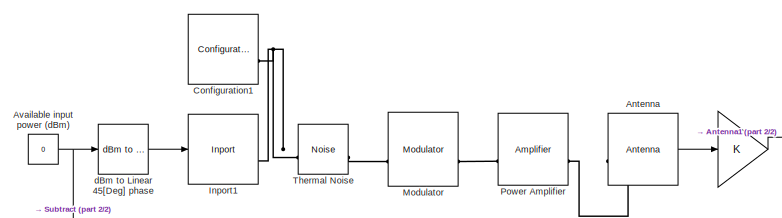
[diagram: root canvas - part 1/2, middle left region]
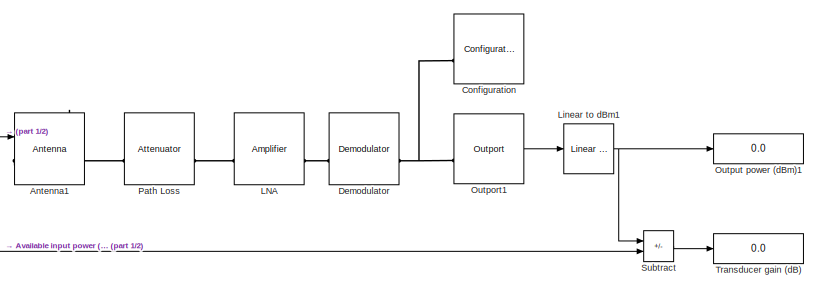
[diagram: root canvas - part 2/2, right side, full height]
MODEL slx_f0b08b09449d
KIND model
CONFIG AbsTol = auto
CONFIG EnableMultiTasking = off
CONFIG FixedStep = auto
CONFIG MaxStep = auto
CONFIG MinStep = auto
CONFIG RelTol = 1e-3
CONFIG SampleTimeConstraint = Unconstrained
CONFIG SolverName = VariableStepAuto
CONFIG StartTime = 0.0
CONFIG StopTime = 0
BLOCK [Gain]  
BLOCK [Reference] Antenna  REF=simrfV2elements/Antenna
  SourceBlock = simrfV2elements/Antenna
  SourceType = Antenna
  UserDataPersistent = on
BLOCK [Reference] Antenna1  REF=simrfV2elements/Antenna
  SourceBlock = simrfV2elements/Antenna
  SourceType = Antenna
  UserDataPersistent = on
BLOCK [Constant] Available input power (dBm)
  Value = 0
BLOCK [Reference] Configuration  REF=simrfV2util1/Configuration
  SourceBlock = simrfV2util1/Configuration
  SourceType = Configuration
BLOCK [Reference] Configuration1  REF=simrfV2util1/Configuration
  SourceBlock = simrfV2util1/Configuration
  SourceType = Configuration
BLOCK [Reference] Demodulator  REF=simrfV2systems/Demodulator
  SourceBlock = simrfV2systems/Demodulator
  SourceType = Demodulator
BLOCK [Reference] Inport1  REF=simrfV2util1/Inport
  SourceBlock = simrfV2util1/Inport
  SourceType = Inport
BLOCK [Reference] LNA  REF=simrfV2elements/Amplifier
  SourceBlock = simrfV2elements/Amplifier
  SourceType = Amplifier
  UserDataPersistent = on
BLOCK [Reference] Linear to dBm1  REF=rfBudgetAnalyzer_lib/Linear to dBm
  SourceBlock = rfBudgetAnalyzer_lib/Linear to dBm
  SourceType = SubSystem
BLOCK [Reference] Modulator  REF=simrfV2systems/Modulator
  SourceBlock = simrfV2systems/Modulator
  SourceType = Modulator
BLOCK [Reference] Outport1  REF=simrfV2util1/Outport
  SourceBlock = simrfV2util1/Outport
  SourceType = Outport
BLOCK [Display] Output power (dBm)1
  Decimation = 1
BLOCK [Reference] Path Loss  REF=simrfV2elements/Attenuator
  SourceBlock = simrfV2elements/Attenuator
  SourceType = Attenuator
BLOCK [Reference] Power Amplifier  REF=simrfV2elements/Amplifier
  SourceBlock = simrfV2elements/Amplifier
  SourceType = Amplifier
  UserDataPersistent = on
BLOCK [Sum] Subtract
  IconShape = rectangular
  Inputs = +-
BLOCK [Reference] Thermal Noise  REF=simrfV2sources1/Noise
  SourceBlock = simrfV2sources1/Noise
  SourceType = Noise Source
BLOCK [Display] Transducer gain (dB)
  Decimation = 1
BLOCK [Reference] dBm to Linear 45[Deg] phase  REF=rfBudgetAnalyzer_lib/dBm to Linear
45[Deg] phase
  SourceBlock = rfBudgetAnalyzer_lib/dBm to Linear\n45[Deg] phase
  SourceType = SubSystem
LINE  :1 -> Antenna1:1
LINE Antenna:1 ->  :1
NET Available input power (dBm):1 -> Subtract:2, dBm to Linear 45[Deg] phase:1
NET Linear to dBm1:1 -> Output power (dBm)1:1, Subtract:1
LINE Outport1:1 -> Linear to dBm1:1
LINE Subtract:1 -> Transducer gain (dB):1
LINE dBm to Linear 45[Deg] phase:1 -> Inport1:1
PLINE Antenna1:LConn1 -- Path Loss:LConn1
PLINE Antenna:LConn1 -- Power Amplifier:RConn1
PNET net1: Configuration1:LConn1 -- Inport1:RConn1 -- Thermal Noise:RConn1
PNET net2: Configuration:LConn1 -- Demodulator:RConn1 -- Outport1:LConn1
PLINE Demodulator:LConn1 -- LNA:RConn1
PLINE LNA:LConn1 -- Path Loss:RConn1
PLINE Modulator:LConn1 -- Thermal Noise:LConn1
PLINE Modulator:RConn1 -- Power Amplifier:LConn1
note: NET lines group one-source signal fan-out (src -> all destinations, sorted); 1:1 wires keep LINE; PNET lines group multi-terminal physical nets as a canonical sorted terminal list (undirected conserving connections); 2-terminal nets keep the pairwise PLINE form
